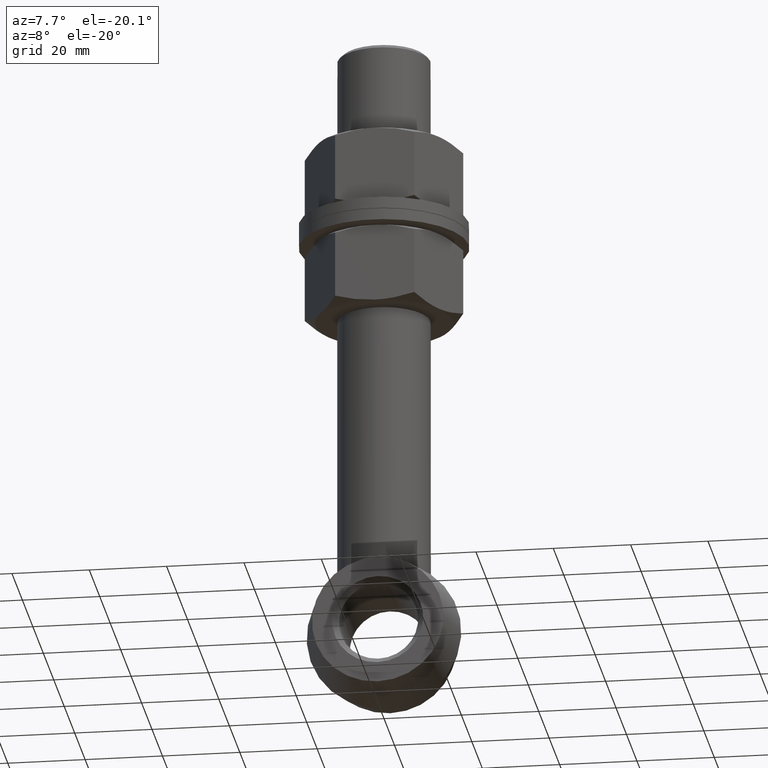
[diagram: clean part render]
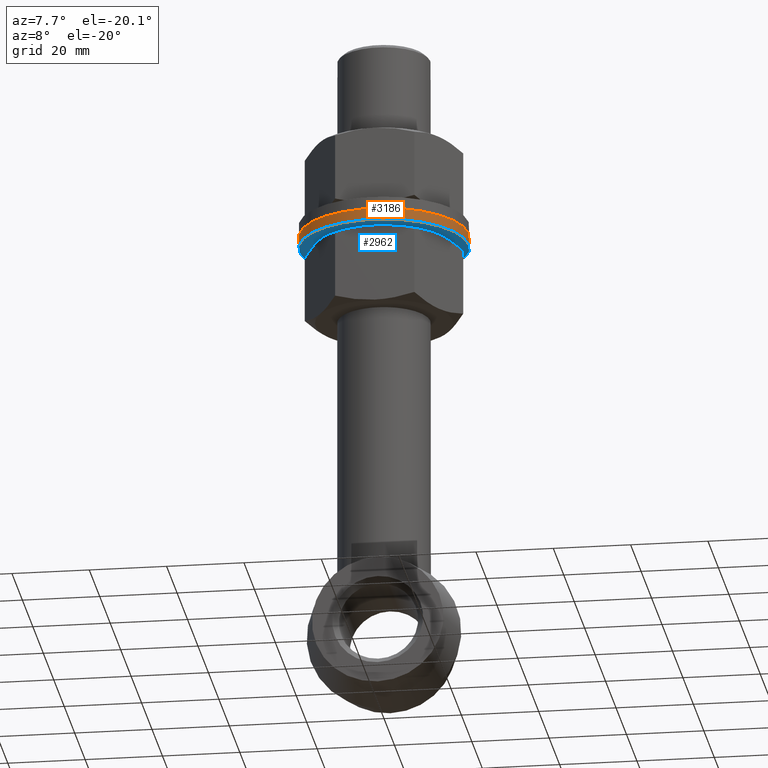
[diagram: same view with the hole feature highlighted: cylindrical wall and planar end face, labeled with their STEP entity ids]
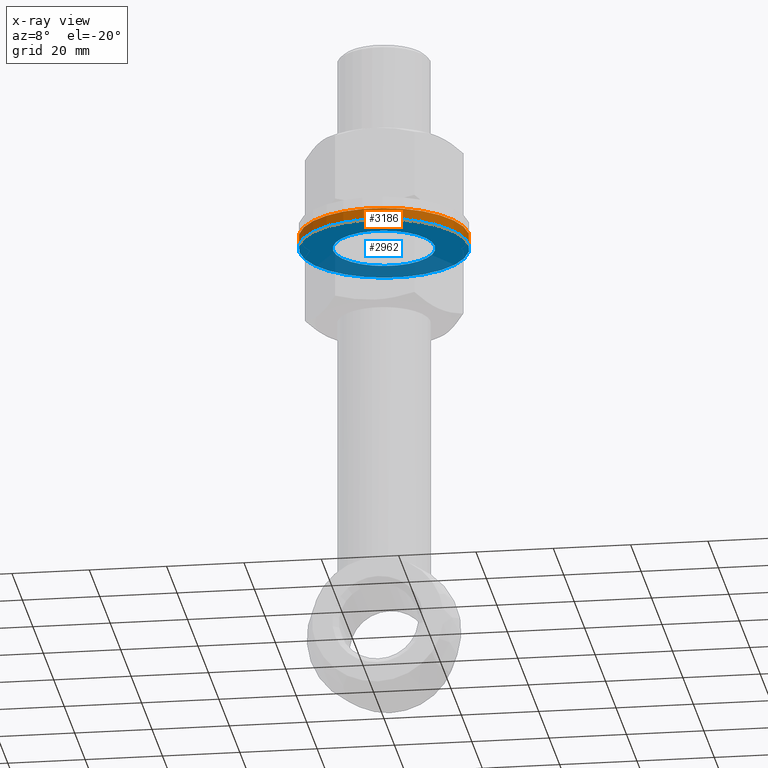
[diagram: x-ray of the same camera — body ghosted, the hole faces saturated]
A machine part, auxiliary view. The highlighted faces form one hole feature of diameter 43.8 mm: the cylindrical wall (entity #3186, orange) and its adjacent planar end face (entity #2962, blue) — they share a circular edge in the B-rep.
The next image is the same camera in x-ray (body ghosted, the hole faces saturated) — the bore reads through the body.
Wall:
#73 = CARTESIAN_POINT ( 'NONE',  ( 0.000000000000000000, 0.000000000000000000, 1.500000000000000000 ) ) ;
#121 = EDGE_CURVE ( 'NONE', #3299, #3299, #3829, .T. ) ;
#340 = CIRCLE ( 'NONE', #5687, 21.89999999999999858 ) ;
#366 = EDGE_LOOP ( 'NONE', ( #2197 ) ) ;
#708 = VERTEX_POINT ( 'NONE', #4391 ) ;
#797 = DIRECTION ( 'NONE',  ( 1.000000000000000000, 0.000000000000000000, 0.000000000000000000 ) ) ;
#1067 = DIRECTION ( 'NONE',  ( -0.000000000000000000, -0.000000000000000000, -1.000000000000000000 ) ) ;
#1574 = DIRECTION ( 'NONE',  ( 0.000000000000000000, 0.000000000000000000, 1.000000000000000000 ) ) ;
#2031 = FACE_OUTER_BOUND ( 'NONE', #5610, .T. ) ;
#2197 = ORIENTED_EDGE ( 'NONE', *, *, #2823, .T. ) ;
#2249 = AXIS2_PLACEMENT_3D ( 'NONE', #73, #1067, #4505 ) ;
#2775 = CYLINDRICAL_SURFACE ( 'NONE', #2249, 21.89999999999999858 ) ;
#2823 = EDGE_CURVE ( 'NONE', #708, #708, #340, .T. ) ;
#3186 = ADVANCED_FACE ( 'NONE', ( #2031, #4226 ), #2775, .T. ) ;
#3299 = VERTEX_POINT ( 'NONE', #3900 ) ;
#3493 = DIRECTION ( 'NONE',  ( 1.000000000000000000, 0.000000000000000000, 0.000000000000000000 ) ) ;
#3829 = CIRCLE ( 'NONE', #5142, 21.89999999999999858 ) ;
#3900 = CARTESIAN_POINT ( 'NONE',  ( 21.89999999999999858, 0.000000000000000000, 1.500000000000000000 ) ) ;
#4226 = FACE_OUTER_BOUND ( 'NONE', #366, .T. ) ;
#4391 = CARTESIAN_POINT ( 'NONE',  ( 21.89999999999999858, 0.000000000000000000, -1.500000000000000000 ) ) ;
#4505 = DIRECTION ( 'NONE',  ( -1.000000000000000000, 0.000000000000000000, 0.000000000000000000 ) ) ;
#4720 = DIRECTION ( 'NONE',  ( 0.000000000000000000, 0.000000000000000000, 1.000000000000000000 ) ) ;
#5081 = CARTESIAN_POINT ( 'NONE',  ( 0.000000000000000000, 0.000000000000000000, 1.500000000000000000 ) ) ;
#5142 = AXIS2_PLACEMENT_3D ( 'NONE', #5081, #1574, #3493 ) ;
#5610 = EDGE_LOOP ( 'NONE', ( #5747 ) ) ;
#5687 = AXIS2_PLACEMENT_3D ( 'NONE', #5732, #4720, #797 ) ;
#5732 = CARTESIAN_POINT ( 'NONE',  ( 0.000000000000000000, 0.000000000000000000, -1.500000000000000000 ) ) ;
#5747 = ORIENTED_EDGE ( 'NONE', *, *, #121, .F. ) ;
End face:
#176 = FACE_OUTER_BOUND ( 'NONE', #886, .T. ) ;
#340 = CIRCLE ( 'NONE', #5687, 21.89999999999999858 ) ;
#640 = FACE_BOUND ( 'NONE', #4982, .T. ) ;
#708 = VERTEX_POINT ( 'NONE', #4391 ) ;
#797 = DIRECTION ( 'NONE',  ( 1.000000000000000000, 0.000000000000000000, 0.000000000000000000 ) ) ;
#886 = EDGE_LOOP ( 'NONE', ( #4410 ) ) ;
#1142 = DIRECTION ( 'NONE',  ( 1.000000000000000000, 0.000000000000000000, 0.000000000000000000 ) ) ;
#1375 = DIRECTION ( 'NONE',  ( 1.000000000000000000, 0.000000000000000000, -0.000000000000000000 ) ) ;
#1396 = DIRECTION ( 'NONE',  ( 0.000000000000000000, 0.000000000000000000, 1.000000000000000000 ) ) ;
#1990 = CARTESIAN_POINT ( 'NONE',  ( 13.15000000000000036, 0.000000000000000000, -1.500000000000000000 ) ) ;
#2038 = ORIENTED_EDGE ( 'NONE', *, *, #4603, .T. ) ;
#2125 = CARTESIAN_POINT ( 'NONE',  ( 0.000000000000000000, 0.000000000000000000, -1.500000000000000000 ) ) ;
#2823 = EDGE_CURVE ( 'NONE', #708, #708, #340, .T. ) ;
#2908 = AXIS2_PLACEMENT_3D ( 'NONE', #2125, #6005, #1142 ) ;
#2962 = ADVANCED_FACE ( 'NONE', ( #176, #640 ), #5619, .F. ) ;
#3432 = VERTEX_POINT ( 'NONE', #1990 ) ;
#4391 = CARTESIAN_POINT ( 'NONE',  ( 21.89999999999999858, 0.000000000000000000, -1.500000000000000000 ) ) ;
#4410 = ORIENTED_EDGE ( 'NONE', *, *, #2823, .F. ) ;
#4586 = CIRCLE ( 'NONE', #2908, 13.15000000000000036 ) ;
#4603 = EDGE_CURVE ( 'NONE', #3432, #3432, #4586, .T. ) ;
#4720 = DIRECTION ( 'NONE',  ( 0.000000000000000000, 0.000000000000000000, 1.000000000000000000 ) ) ;
#4982 = EDGE_LOOP ( 'NONE', ( #2038 ) ) ;
#5619 = PLANE ( 'NONE',  #5929 ) ;
#5687 = AXIS2_PLACEMENT_3D ( 'NONE', #5732, #4720, #797 ) ;
#5732 = CARTESIAN_POINT ( 'NONE',  ( 0.000000000000000000, 0.000000000000000000, -1.500000000000000000 ) ) ;
#5781 = CARTESIAN_POINT ( 'NONE',  ( 0.000000000000000000, 0.000000000000000000, -1.500000000000000000 ) ) ;
#5929 = AXIS2_PLACEMENT_3D ( 'NONE', #5781, #1396, #1375 ) ;
#6005 = DIRECTION ( 'NONE',  ( 0.000000000000000000, 0.000000000000000000, 1.000000000000000000 ) ) ;